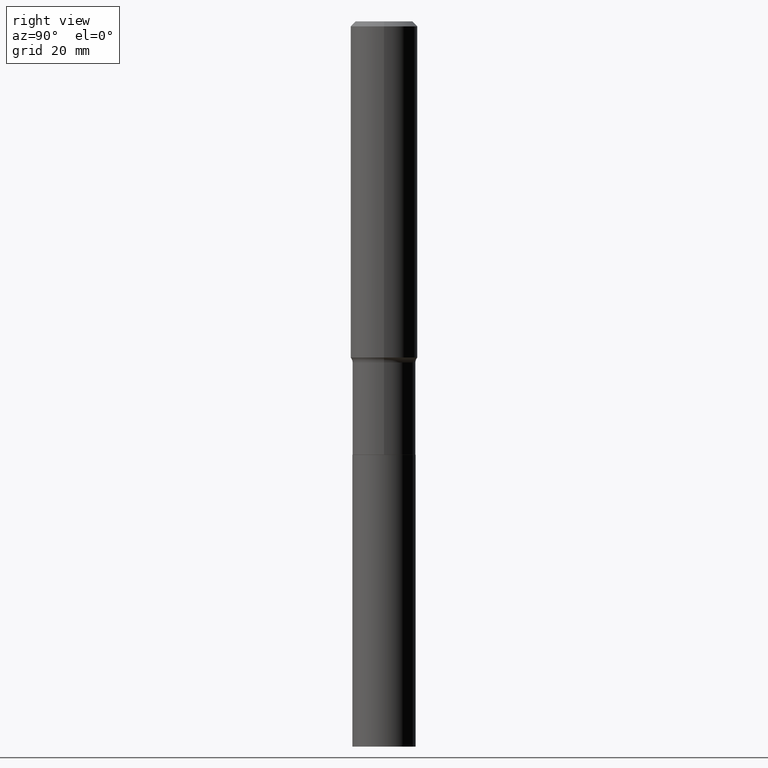
[diagram: clean part render]
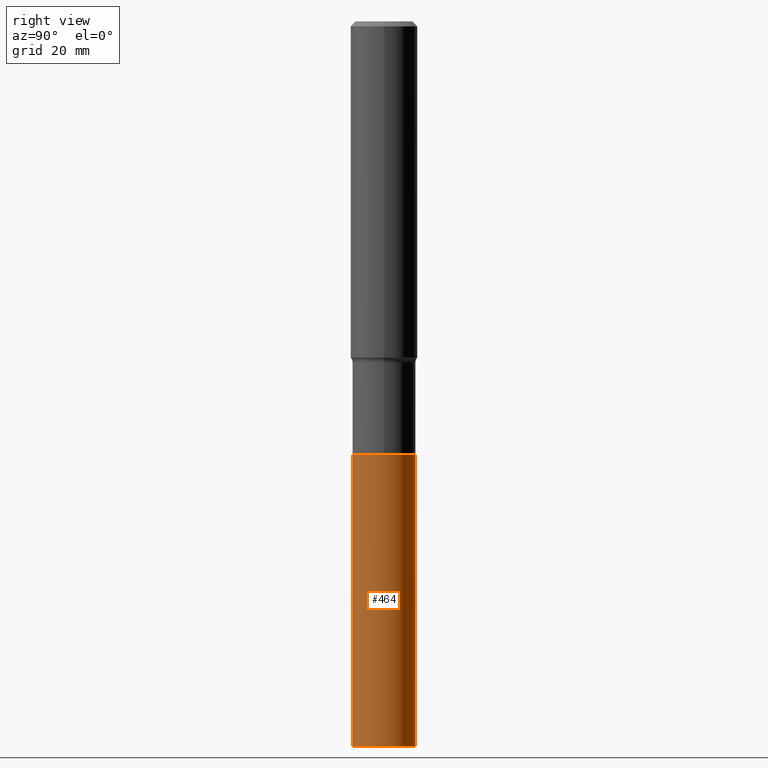
[diagram: same view with one face highlighted and labeled with its STEP entity id]
A machine part, right view. The second image highlights one B-rep face of the part: STEP entity #464.
In plain terms, the highlighted cylindrical surface (edge-blend (fillet) strip) has radius 8.5001 mm, axis along (-0, 0, 1).
Its self-contained STEP definition (entity closure, byte-faithful):
#4 = AXIS2_PLACEMENT_3D ( 'NONE', #198, #269, #91 ) ;
#26 = EDGE_CURVE ( 'NONE', #300, #33, #145, .T. ) ;
#33 = VERTEX_POINT ( 'NONE', #99 ) ;
#44 = EDGE_LOOP ( 'NONE', ( #376, #348, #424, #50 ) ) ;
#50 = ORIENTED_EDGE ( 'NONE', *, *, #203, .F. ) ;
#83 = CARTESIAN_POINT ( 'NONE',  ( -2.336848460087597067E-15, -0.3346500000000160457, -4.587199999999998390 ) ) ;
#85 = CARTESIAN_POINT ( 'NONE',  ( 2.377831265221286917E-15, 0.3346499999999839603, -4.587200000000001054 ) ) ;
#91 = DIRECTION ( 'NONE',  ( -6.982962677686266711E-15, -1.000000000000000000, 3.265319580055895186E-15 ) ) ;
#99 = CARTESIAN_POINT ( 'NONE',  ( 2.377831265221324783E-15, 0.3346499999999731911, -7.677200000000001801 ) ) ;
#103 = DIRECTION ( 'NONE',  ( -6.982962677686266711E-15, -1.000000000000000000, 3.265319580055895186E-15 ) ) ;
#120 = CARTESIAN_POINT ( 'NONE',  ( 1.121785450773245711E-28, -1.601612319754127659E-14, -4.587199999999999278 ) ) ;
#131 = CARTESIAN_POINT ( 'NONE',  ( 1.121785450773245711E-28, -1.601612319754127659E-14, -4.587199999999999278 ) ) ;
#135 = VECTOR ( 'NONE', #407, 39.37007874015748143 ) ;
#145 = CIRCLE ( 'NONE', #4, 0.3346500000000000030 ) ;
#150 = FACE_OUTER_BOUND ( 'NONE', #44, .T. ) ;
#151 = AXIS2_PLACEMENT_3D ( 'NONE', #131, #274, #103 ) ;
#169 = LINE ( 'NONE', #422, #189 ) ;
#189 = VECTOR ( 'NONE', #359, 39.37007874015748143 ) ;
#198 = CARTESIAN_POINT ( 'NONE',  ( 1.877294112471093456E-28, -2.680682259053162671E-14, -7.677200000000000912 ) ) ;
#199 = CARTESIAN_POINT ( 'NONE',  ( 2.377831265221363042E-15, 0.3346499999999839603, -4.587200000000001054 ) ) ;
#201 = DIRECTION ( 'NONE',  ( -6.982962677686266711E-15, -1.000000000000000000, 3.265319580055895186E-15 ) ) ;
#203 = EDGE_CURVE ( 'NONE', #300, #252, #169, .T. ) ;
#252 = VERTEX_POINT ( 'NONE', #83 ) ;
#261 = DIRECTION ( 'NONE',  ( -2.445011850154846511E-29, 3.492135725886842915E-15, 1.000000000000000000 ) ) ;
#267 = CARTESIAN_POINT ( 'NONE',  ( -2.336848460087521336E-15, -0.3346500000000268704, -7.677200000000000024 ) ) ;
#269 = DIRECTION ( 'NONE',  ( -2.445011850154846511E-29, 3.492135725886842915E-15, 1.000000000000000000 ) ) ;
#274 = DIRECTION ( 'NONE',  ( -2.445011850154846511E-29, 3.492135725886842915E-15, 1.000000000000000000 ) ) ;
#280 = VERTEX_POINT ( 'NONE', #199 ) ;
#300 = VERTEX_POINT ( 'NONE', #267 ) ;
#311 = EDGE_CURVE ( 'NONE', #252, #280, #381, .T. ) ;
#348 = ORIENTED_EDGE ( 'NONE', *, *, #388, .T. ) ;
#359 = DIRECTION ( 'NONE',  ( -2.445011850154846511E-29, 3.492135725886842915E-15, 1.000000000000000000 ) ) ;
#375 = LINE ( 'NONE', #85, #135 ) ;
#376 = ORIENTED_EDGE ( 'NONE', *, *, #26, .T. ) ;
#381 = CIRCLE ( 'NONE', #151, 0.3346500000000000030 ) ;
#387 = AXIS2_PLACEMENT_3D ( 'NONE', #120, #261, #201 ) ;
#388 = EDGE_CURVE ( 'NONE', #33, #280, #375, .T. ) ;
#407 = DIRECTION ( 'NONE',  ( -2.445011850154846511E-29, 3.492135725886842915E-15, 1.000000000000000000 ) ) ;
#422 = CARTESIAN_POINT ( 'NONE',  ( -2.336848460087597067E-15, -0.3346500000000160457, -4.587199999999998390 ) ) ;
#424 = ORIENTED_EDGE ( 'NONE', *, *, #311, .F. ) ;
#437 = CYLINDRICAL_SURFACE ( 'NONE', #387, 0.3346500000000000030 ) ;
#464 = ADVANCED_FACE ( 'NONE', ( #150 ), #437, .T. ) ;